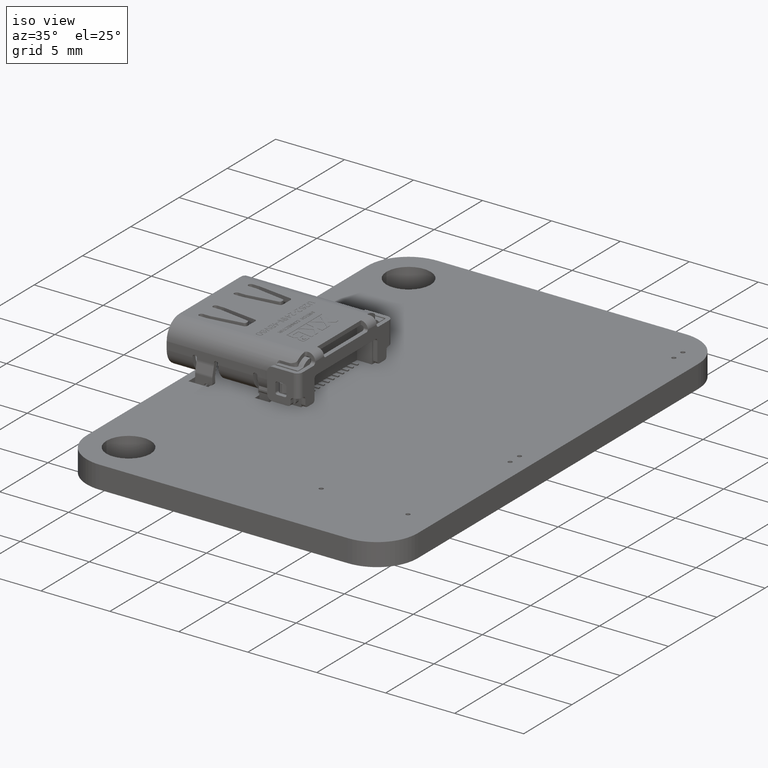
[diagram: clean part render]
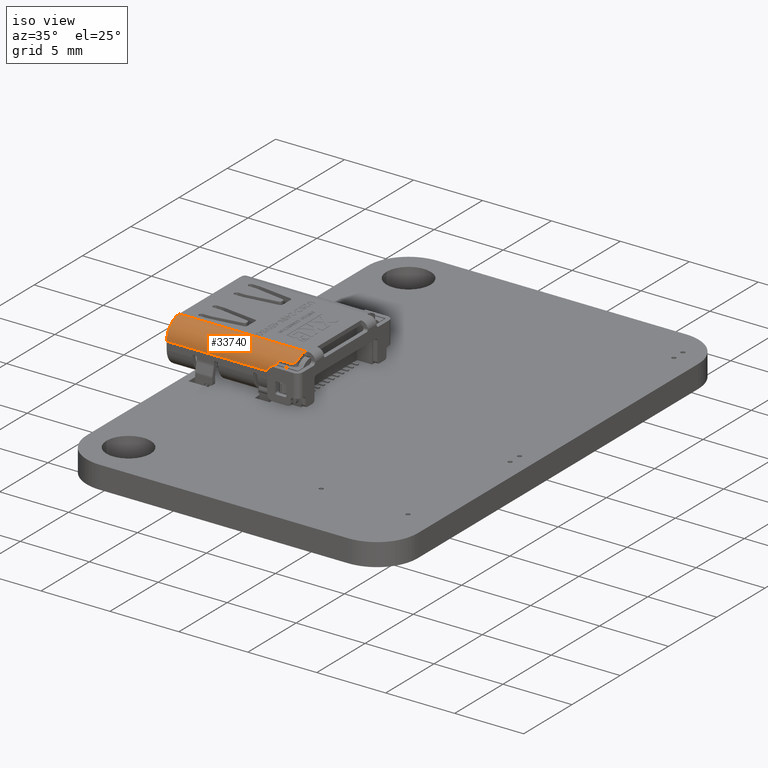
[diagram: same view with one face highlighted and labeled with its STEP entity id]
A machine part, iso view. The second image highlights one B-rep face of the part: STEP entity #33740.
In plain terms, the highlighted cylindrical surface (edge-blend (fillet) strip) has radius 1.3 mm, axis along (1, -0, 0).
Its self-contained STEP definition (entity closure, byte-faithful):
#33416 = VERTEX_POINT('',#33417);
#33417 = CARTESIAN_POINT('',(4.323233967471,0.880042221267,
    -1.649999987307));
#33627 = VERTEX_POINT('',#33628);
#33628 = CARTESIAN_POINT('',(4.14251989472,1.142673018685,-2.74778308266
    ));
#33646 = VERTEX_POINT('',#33647);
#33647 = CARTESIAN_POINT('',(3.968700034522,1.305708364751,
    -2.91000030898));
#33681 = VERTEX_POINT('',#33682);
#33682 = CARTESIAN_POINT('',(3.305111513003,1.572959643433,
    -2.910000308983));
#33690 = EDGE_CURVE('',#33646,#33681,#33691,.T.);
#33691 = CIRCLE('',#33692,1.299999978);
#33692 = AXIS2_PLACEMENT_3D('',#33693,#33694,#33695);
#33693 = CARTESIAN_POINT('',(3.169999708,0.27999996,-2.91000031092));
#33694 = DIRECTION('',(0.E+000,0.E+000,1.));
#33695 = DIRECTION('',(0.61438488024,0.789006475849,-0.E+000));
#33708 = VERTEX_POINT('',#33709);
#33709 = CARTESIAN_POINT('',(3.175067398811,1.579995081825,
    -3.040273170817));
#33715 = EDGE_CURVE('',#33708,#33681,#33716,.T.);
#33716 = B_SPLINE_CURVE_WITH_KNOTS('',3,(#33717,#33718,#33719,#33720,
    #33721,#33722,#33723,#33724),.UNSPECIFIED.,.F.,.F.,(4,1,1,1,1,4),(
    0.E+000,0.2,0.4,0.6,0.8,1.),.QUASI_UNIFORM_KNOTS.);
#33717 = CARTESIAN_POINT('',(3.175067398811,1.579995081825,
    -3.040273170817));
#33718 = CARTESIAN_POINT('',(3.176143719488,1.579990926116,-3.0241422067
    ));
#33719 = CARTESIAN_POINT('',(3.179839262048,1.579978427135,
    -2.99505496077));
#33720 = CARTESIAN_POINT('',(3.199229529062,1.579748216036,
    -2.962563094611));
#33721 = CARTESIAN_POINT('',(3.227160818139,1.578859666777,
    -2.933231335818));
#33722 = CARTESIAN_POINT('',(3.260599404174,1.57702461946,
    -2.915241672205));
#33723 = CARTESIAN_POINT('',(3.289437429649,1.574597554963,
    -2.911531860139));
#33724 = CARTESIAN_POINT('',(3.305111513003,1.572959643433,
    -2.910000308983));
#33740 = ADVANCED_FACE('',(#33741),#33846,.T.);
#33741 = FACE_BOUND('',#33742,.T.);
#33742 = EDGE_LOOP('',(#33743,#33751,#33760,#33768,#33775,#33784,#33797,
    #33805,#33814,#33823,#33834,#33844,#33845));
#33743 = ORIENTED_EDGE('',*,*,#33744,.F.);
#33744 = EDGE_CURVE('',#33745,#33708,#33747,.T.);
#33745 = VERTEX_POINT('',#33746);
#33746 = CARTESIAN_POINT('',(3.17489930402,1.579990704874,6.26));
#33747 = LINE('',#33748,#33749);
#33748 = CARTESIAN_POINT('',(3.174979124893,1.579995651916,6.26));
#33749 = VECTOR('',#33750,1.);
#33750 = DIRECTION('',(9.49154031528E-006,-6.129823589238E-008,
    -0.999999999955));
#33751 = ORIENTED_EDGE('',*,*,#33752,.T.);
#33752 = EDGE_CURVE('',#33745,#33753,#33755,.T.);
#33753 = VERTEX_POINT('',#33754);
#33754 = CARTESIAN_POINT('',(4.469999686,0.279999955823,6.26));
#33755 = CIRCLE('',#33756,1.299999978);
#33756 = AXIS2_PLACEMENT_3D('',#33757,#33758,#33759);
#33757 = CARTESIAN_POINT('',(3.169999708,0.27999996,6.26));
#33758 = DIRECTION('',(0.E+000,0.E+000,-1.));
#33759 = DIRECTION('',(3.768920079176E-003,0.999992897595,0.E+000));
#33760 = ORIENTED_EDGE('',*,*,#33761,.F.);
#33761 = EDGE_CURVE('',#33762,#33753,#33764,.T.);
#33762 = VERTEX_POINT('',#33763);
#33763 = CARTESIAN_POINT('',(4.469999686,0.27999996023,-1.64999998531));
#33764 = LINE('',#33765,#33766);
#33765 = CARTESIAN_POINT('',(4.469999686,0.279999957502,-1.649999987292)
  );
#33766 = VECTOR('',#33767,1.);
#33767 = DIRECTION('',(0.E+000,-2.123171076275E-010,1.));
#33768 = ORIENTED_EDGE('',*,*,#33769,.T.);
#33769 = EDGE_CURVE('',#33762,#33416,#33770,.T.);
#33770 = CIRCLE('',#33771,1.299999978);
#33771 = AXIS2_PLACEMENT_3D('',#33772,#33773,#33774);
#33772 = CARTESIAN_POINT('',(3.169999708,0.27999996,-1.64999998531));
#33773 = DIRECTION('',(0.E+000,0.E+000,1.));
#33774 = DIRECTION('',(1.,1.766757710225E-010,-0.E+000));
#33775 = ORIENTED_EDGE('',*,*,#33776,.T.);
#33776 = EDGE_CURVE('',#33416,#33777,#33779,.T.);
#33777 = VERTEX_POINT('',#33778);
#33778 = CARTESIAN_POINT('',(4.274670084898,0.965348996147,
    -1.649999987094));
#33779 = CIRCLE('',#33780,1.299999978);
#33780 = AXIS2_PLACEMENT_3D('',#33781,#33782,#33783);
#33781 = CARTESIAN_POINT('',(3.169999708,0.27999996,-1.64999998531));
#33782 = DIRECTION('',(0.E+000,0.E+000,1.));
#33783 = DIRECTION('',(0.887103404406,0.461570742023,-0.E+000));
#33784 = ORIENTED_EDGE('',*,*,#33785,.F.);
#33785 = EDGE_CURVE('',#33786,#33777,#33788,.T.);
#33786 = VERTEX_POINT('',#33787);
#33787 = CARTESIAN_POINT('',(4.199806649048,1.073408812156,
    -1.77999958097));
#33788 = B_SPLINE_CURVE_WITH_KNOTS('',3,(#33789,#33790,#33791,#33792,
    #33793,#33794,#33795,#33796),.UNSPECIFIED.,.F.,.F.,(4,1,1,1,1,4),(
    0.E+000,0.2,0.4,0.6,0.8,1.),.QUASI_UNIFORM_KNOTS.);
#33789 = CARTESIAN_POINT('',(4.199806649048,1.073408812156,
    -1.77999958097));
#33790 = CARTESIAN_POINT('',(4.200462062167,1.072558117112,
    -1.764042918523));
#33791 = CARTESIAN_POINT('',(4.202750834877,1.069602585305,
    -1.734889403874));
#33792 = CARTESIAN_POINT('',(4.214476140798,1.054124010288,
    -1.702750626324));
#33793 = CARTESIAN_POINT('',(4.231013763197,1.03137263173,
    -1.673325952173));
#33794 = CARTESIAN_POINT('',(4.250347905444,1.003423602175,
    -1.655235565408));
#33795 = CARTESIAN_POINT('',(4.266270438148,0.978887850898,
    -1.651508198991));
#33796 = CARTESIAN_POINT('',(4.274670084898,0.965348996147,
    -1.649999987094));
#33797 = ORIENTED_EDGE('',*,*,#33798,.F.);
#33798 = EDGE_CURVE('',#33799,#33786,#33801,.T.);
#33799 = VERTEX_POINT('',#33800);
#33800 = CARTESIAN_POINT('',(4.199806649064,1.073408812318,
    -2.464666027435));
#33801 = LINE('',#33802,#33803);
#33802 = CARTESIAN_POINT('',(4.199806649069,1.073408812224,
    -2.464666027201));
#33803 = VECTOR('',#33804,1.);
#33804 = DIRECTION('',(-2.973669007279E-011,-9.95215266253E-011,1.));
#33805 = ORIENTED_EDGE('',*,*,#33806,.F.);
#33806 = EDGE_CURVE('',#33807,#33799,#33809,.T.);
#33807 = VERTEX_POINT('',#33808);
#33808 = CARTESIAN_POINT('',(4.189934094414,1.086060627912,
    -2.552447221605));
#33809 = B_SPLINE_CURVE_WITH_KNOTS('',3,(#33810,#33811,#33812,#33813),
  .UNSPECIFIED.,.F.,.F.,(4,4),(0.E+000,1.),.PIECEWISE_BEZIER_KNOTS.);
#33810 = CARTESIAN_POINT('',(4.189934090003,1.086060627201,
    -2.552447214973));
#33811 = CARTESIAN_POINT('',(4.193225778573,1.081895548214,
    -2.523179389894));
#33812 = CARTESIAN_POINT('',(4.196516644483,1.077679081731,
    -2.493918879441));
#33813 = CARTESIAN_POINT('',(4.199806649064,1.073408812318,
    -2.464666027435));
#33814 = ORIENTED_EDGE('',*,*,#33815,.F.);
#33815 = EDGE_CURVE('',#33627,#33807,#33816,.T.);
#33816 = B_SPLINE_CURVE_WITH_KNOTS('',3,(#33817,#33818,#33819,#33820,
    #33821,#33822),.UNSPECIFIED.,.F.,.F.,(4,1,1,4),(0.E+000,
    0.333333333333,0.666666666667,1.),.UNSPECIFIED.);
#33817 = CARTESIAN_POINT('',(4.14251989472,1.142673018685,-2.74778308266
    ));
#33818 = CARTESIAN_POINT('',(4.147970025495,1.136528925407,
    -2.726077749779));
#33819 = CARTESIAN_POINT('',(4.158740403777,1.124152443074,
    -2.682670052459));
#33820 = CARTESIAN_POINT('',(4.174546064264,1.105280954008,
    -2.617557008302));
#33821 = CARTESIAN_POINT('',(4.184846719643,1.092497846139,
    -2.574151343499));
#33822 = CARTESIAN_POINT('',(4.189934094414,1.086060627912,
    -2.552447221605));
#33823 = ORIENTED_EDGE('',*,*,#33824,.F.);
#33824 = EDGE_CURVE('',#33825,#33627,#33827,.T.);
#33825 = VERTEX_POINT('',#33826);
#33826 = CARTESIAN_POINT('',(4.13075241333,1.155759163206,-2.78205340131
    ));
#33827 = B_SPLINE_CURVE_WITH_KNOTS('',3,(#33828,#33829,#33830,#33831,
    #33832,#33833),.UNSPECIFIED.,.F.,.F.,(4,1,1,4),(0.E+000,
    0.333333333333,0.666666666667,1.),.UNSPECIFIED.);
#33828 = CARTESIAN_POINT('',(4.13075241333,1.155759163206,-2.78205340131
    ));
#33829 = CARTESIAN_POINT('',(4.132145727975,1.154230625671,
    -2.778224743789));
#33830 = CARTESIAN_POINT('',(4.134873169634,1.151223606642,
    -2.770582723082));
#33831 = CARTESIAN_POINT('',(4.138691670462,1.146975447203,
    -2.759307648814));
#33832 = CARTESIAN_POINT('',(4.141253178544,1.144101025216,
    -2.751632089579));
#33833 = CARTESIAN_POINT('',(4.14251989472,1.142673018685,-2.74778308266
    ));
#33834 = ORIENTED_EDGE('',*,*,#33835,.F.);
#33835 = EDGE_CURVE('',#33646,#33825,#33836,.T.);
#33836 = B_SPLINE_CURVE_WITH_KNOTS('',3,(#33837,#33838,#33839,#33840,
    #33841,#33842,#33843),.UNSPECIFIED.,.F.,.F.,(4,1,1,1,4),(0.E+000,
    0.25,0.5,0.75,1.),.QUASI_UNIFORM_KNOTS.);
#33837 = CARTESIAN_POINT('',(3.968700034522,1.305708364751,
    -2.91000030898));
#33838 = CARTESIAN_POINT('',(3.986213195131,1.292071187951,
    -2.909814064871));
#33839 = CARTESIAN_POINT('',(4.01935824559,1.264771844054,
    -2.904399789946));
#33840 = CARTESIAN_POINT('',(4.061892925739,1.226401152802,
    -2.88276975103));
#33841 = CARTESIAN_POINT('',(4.103385135064,1.185370629924,
    -2.842780849885));
#33842 = CARTESIAN_POINT('',(4.122484767262,1.16482919444,
    -2.804290416071));
#33843 = CARTESIAN_POINT('',(4.13075241333,1.155759163206,-2.78205340131
    ));
#33844 = ORIENTED_EDGE('',*,*,#33690,.T.);
#33845 = ORIENTED_EDGE('',*,*,#33715,.F.);
#33846 = CYLINDRICAL_SURFACE('',#33847,1.299999978);
#33847 = AXIS2_PLACEMENT_3D('',#33848,#33849,#33850);
#33848 = CARTESIAN_POINT('',(3.169999708,0.27999996,6.26));
#33849 = DIRECTION('',(0.E+000,0.E+000,-1.));
#33850 = DIRECTION('',(-1.,0.E+000,0.E+000));